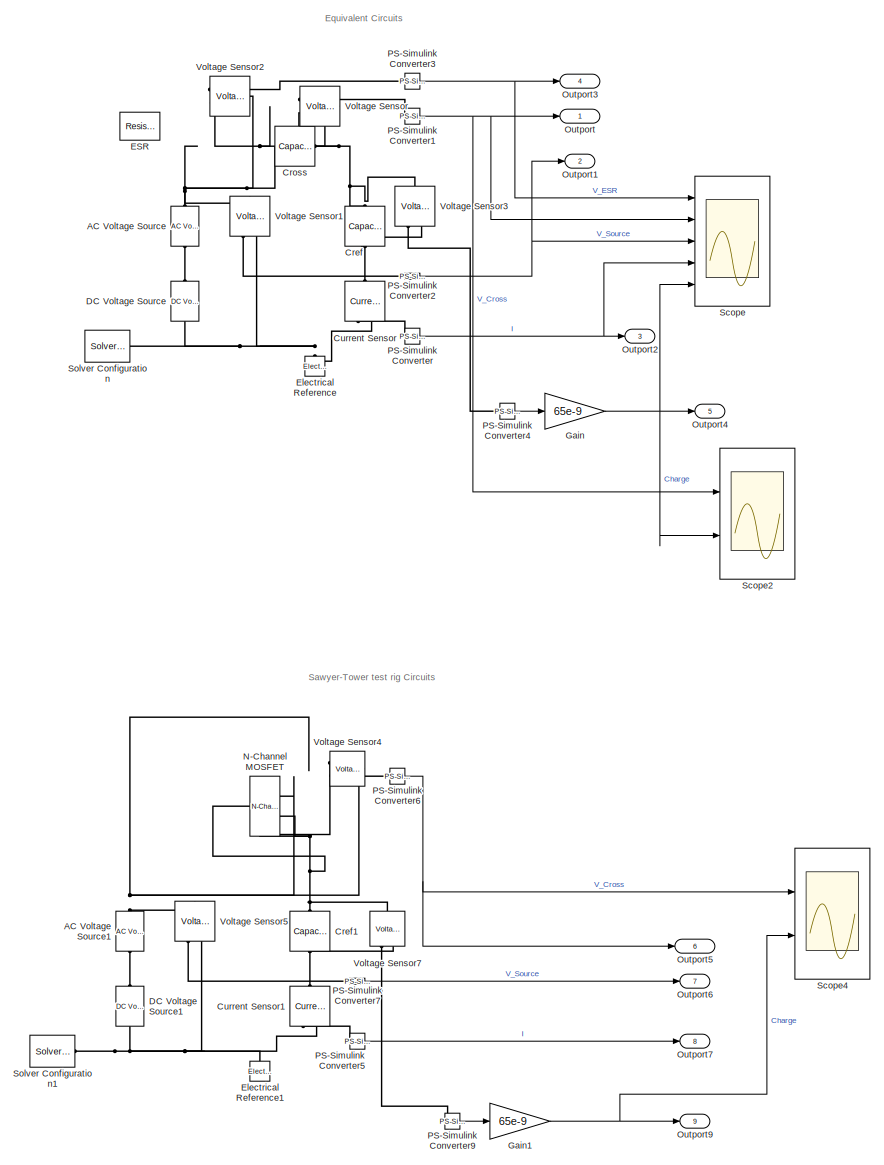
[diagram: root canvas - part 1/2, right side, full height]
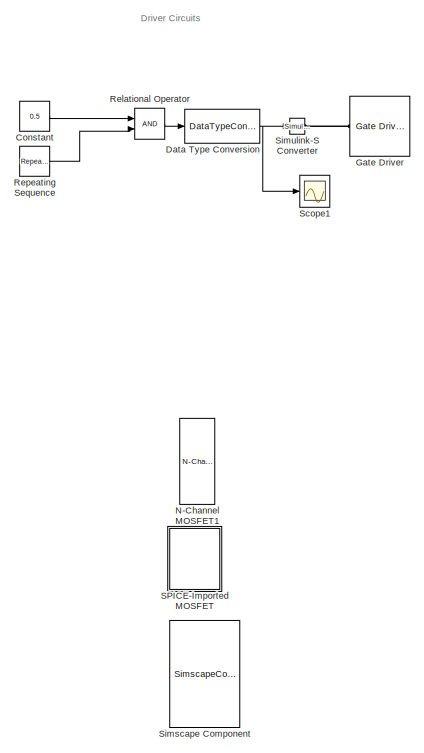
[diagram: root canvas - part 2/2, middle left region]
MODEL slx_3ec526a459f6
KIND model
CONFIG AbsTol = auto
CONFIG EnableMultiTasking = off
CONFIG FixedStep = auto
CONFIG MaxStep = auto
CONFIG MinStep = auto
CONFIG RelTol = 1e-3
CONFIG SampleTimeConstraint = Unconstrained
CONFIG SolverName = VariableStepAuto
CONFIG StartTime = 0.0
CONFIG StopTime = 0.1
BLOCK [Reference] AC Voltage Source  REF=fl_lib/Electrical/Electrical Sources/AC Voltage Source
  Commented = on
  NameLocation = right
  Ports = [0, 0, 0, 0, 0, 1, 1]
  SourceBlock = fl_lib/Electrical/Electrical Sources/AC Voltage Source
  SourceProductBaseCode = SS
  SourceType = AC Voltage Source
BLOCK [Reference] AC Voltage Source1  REF=fl_lib/Electrical/Electrical Sources/AC Voltage Source
  Commented = on
  NameLocation = right
  Ports = [0, 0, 0, 0, 0, 1, 1]
  SourceBlock = fl_lib/Electrical/Electrical Sources/AC Voltage Source
  SourceProductBaseCode = SS
  SourceType = AC Voltage Source
BLOCK [Constant] Constant
  Commented = on
  Value = 0.5
BLOCK [Reference] Cref  REF=fl_lib/Electrical/Electrical Elements/Capacitor
  Commented = on
  NameLocation = left
  Ports = [0, 0, 0, 0, 0, 1, 1]
  SourceBlock = fl_lib/Electrical/Electrical Elements/Capacitor
  SourceProductBaseCode = SS
  SourceType = Capacitor
BLOCK [Reference] Cref1  REF=fl_lib/Electrical/Electrical Elements/Capacitor
  Commented = on
  NameLocation = left
  Ports = [0, 0, 0, 0, 0, 1, 1]
  SourceBlock = fl_lib/Electrical/Electrical Elements/Capacitor
  SourceProductBaseCode = SS
  SourceType = Capacitor
BLOCK [Reference] Cross  REF=fl_lib/Electrical/Electrical Elements/Capacitor
  Commented = on
  Ports = [0, 0, 0, 0, 0, 1, 1]
  SourceBlock = fl_lib/Electrical/Electrical Elements/Capacitor
  SourceProductBaseCode = SS
  SourceType = Capacitor
BLOCK [Reference] Current Sensor  REF=fl_lib/Electrical/Electrical Sensors/Current Sensor
  Commented = on
  NameLocation = left
  Ports = [0, 0, 0, 0, 0, 1, 2]
  SourceBlock = fl_lib/Electrical/Electrical Sensors/Current Sensor
  SourceProductBaseCode = SS
  SourceType = Current Sensor
BLOCK [Reference] Current Sensor1  REF=fl_lib/Electrical/Electrical Sensors/Current Sensor
  Commented = on
  NameLocation = left
  Ports = [0, 0, 0, 0, 0, 1, 2]
  SourceBlock = fl_lib/Electrical/Electrical Sensors/Current Sensor
  SourceProductBaseCode = SS
  SourceType = Current Sensor
BLOCK [Reference] DC Voltage Source  REF=ee_lib/Additional
Components/SPICE Sources/DC Voltage Source
  Commented = on
  NameLocation = right
  Ports = [0, 0, 0, 0, 0, 1, 1]
  SourceBlock = ee_lib/Additional\nComponents/SPICE Sources/DC Voltage Source
  SourceProductBaseCode = PS
  SourceType = DC Voltage Source
BLOCK [Reference] DC Voltage Source1  REF=ee_lib/Additional
Components/SPICE Sources/DC Voltage Source
  Commented = on
  NameLocation = right
  Ports = [0, 0, 0, 0, 0, 1, 1]
  SourceBlock = ee_lib/Additional\nComponents/SPICE Sources/DC Voltage Source
  SourceProductBaseCode = PS
  SourceType = DC Voltage Source
BLOCK [DataTypeConversion] Data Type Conversion
  Commented = on
  OutDataTypeStr = double
  RndMeth = Floor
  SaturateOnIntegerOverflow = off
BLOCK [Reference] ESR  REF=fl_lib/Electrical/Electrical Elements/Resistor
  Commented = on
  Ports = [0, 0, 0, 0, 0, 1, 1]
  SourceBlock = fl_lib/Electrical/Electrical Elements/Resistor
  SourceProductBaseCode = SS
  SourceType = Resistor
BLOCK [Reference] Electrical Reference  REF=fl_lib/Electrical/Electrical Elements/Electrical Reference
  Commented = on
  NameLocation = right
  Ports = [0, 0, 0, 0, 0, 1]
  SourceBlock = fl_lib/Electrical/Electrical Elements/Electrical Reference
  SourceProductBaseCode = SS
  SourceType = Electrical Reference
BLOCK [Reference] Electrical Reference1  REF=fl_lib/Electrical/Electrical Elements/Electrical Reference
  Commented = on
  NameLocation = right
  Ports = [0, 0, 0, 0, 0, 1]
  SourceBlock = fl_lib/Electrical/Electrical Elements/Electrical Reference
  SourceProductBaseCode = SS
  SourceType = Electrical Reference
BLOCK [Gain] Gain
  Commented = on
  Gain = 65e-9
BLOCK [Gain] Gain1
  Commented = on
  Gain = 65e-9
BLOCK [Reference] Gate Driver  REF=ee_lib/Semiconductors &
Converters/Gate Driver
  Commented = on
  Ports = [0, 0, 0, 0, 0, 1, 2]
  SourceBlock = ee_lib/Semiconductors &\nConverters/Gate Driver
  SourceProductBaseCode = PS
  SourceType = Gate Driver
BLOCK [Reference] N-Channel MOSFET  REF=ee_lib/Semiconductors &
Converters/N-Channel MOSFET
  Commented = on
  Ports = [0, 0, 0, 0, 0, 1, 2]
  SourceBlock = ee_lib/Semiconductors &\nConverters/N-Channel MOSFET
  SourceProductBaseCode = PS
  SourceType = N-Channel MOSFET
BLOCK [Reference] N-Channel MOSFET1  REF=ee_lib/Semiconductors &
Converters/N-Channel MOSFET
  Ports = [0, 0, 0, 0, 0, 1, 2]
  SourceBlock = ee_lib/Semiconductors &\nConverters/N-Channel MOSFET
  SourceProductBaseCode = PS
  SourceType = N-Channel MOSFET
BLOCK [Outport] Outport
  SignalName = VCross
BLOCK [Outport] Outport1
  Port = 2
  SignalName = Vsource
BLOCK [Outport] Outport2
  Port = 3
  SignalName = I
BLOCK [Outport] Outport3
  Port = 4
  SignalName = VESR
BLOCK [Outport] Outport4
  Port = 5
  SignalName = Charge
BLOCK [Outport] Outport5
  Port = 6
  SignalName = VCross
BLOCK [Outport] Outport6
  Port = 7
  SignalName = Vsource
BLOCK [Outport] Outport7
  Port = 8
  SignalName = I
BLOCK [Outport] Outport9
  Port = 9
  SignalName = Charge
BLOCK [Reference] PS-Simulink Converter  REF=nesl_utility/PS-Simulink
Converter
  Commented = on
  Ports = [0, 1, 0, 0, 0, 1]
  SourceBlock = nesl_utility/PS-Simulink\nConverter
  SourceProductBaseCode = PW,SS
  SourceType = PS-Simulink\nConverter
BLOCK [Reference] PS-Simulink Converter1  REF=nesl_utility/PS-Simulink
Converter
  Commented = on
  Ports = [0, 1, 0, 0, 0, 1]
  SourceBlock = nesl_utility/PS-Simulink\nConverter
  SourceProductBaseCode = PW,SS
  SourceType = PS-Simulink\nConverter
BLOCK [Reference] PS-Simulink Converter2  REF=nesl_utility/PS-Simulink
Converter
  Commented = on
  Ports = [0, 1, 0, 0, 0, 1]
  SourceBlock = nesl_utility/PS-Simulink\nConverter
  SourceProductBaseCode = PW,SS
  SourceType = PS-Simulink\nConverter
BLOCK [Reference] PS-Simulink Converter3  REF=nesl_utility/PS-Simulink
Converter
  Commented = on
  Ports = [0, 1, 0, 0, 0, 1]
  SourceBlock = nesl_utility/PS-Simulink\nConverter
  SourceProductBaseCode = PW,SS
  SourceType = PS-Simulink\nConverter
BLOCK [Reference] PS-Simulink Converter4  REF=nesl_utility/PS-Simulink
Converter
  Commented = on
  Ports = [0, 1, 0, 0, 0, 1]
  SourceBlock = nesl_utility/PS-Simulink\nConverter
  SourceProductBaseCode = PW,SS
  SourceType = PS-Simulink\nConverter
BLOCK [Reference] PS-Simulink Converter5  REF=nesl_utility/PS-Simulink
Converter
  Commented = on
  Ports = [0, 1, 0, 0, 0, 1]
  SourceBlock = nesl_utility/PS-Simulink\nConverter
  SourceProductBaseCode = PW,SS
  SourceType = PS-Simulink\nConverter
BLOCK [Reference] PS-Simulink Converter6  REF=nesl_utility/PS-Simulink
Converter
  Commented = on
  Ports = [0, 1, 0, 0, 0, 1]
  SourceBlock = nesl_utility/PS-Simulink\nConverter
  SourceProductBaseCode = PW,SS
  SourceType = PS-Simulink\nConverter
BLOCK [Reference] PS-Simulink Converter7  REF=nesl_utility/PS-Simulink
Converter
  Commented = on
  Ports = [0, 1, 0, 0, 0, 1]
  SourceBlock = nesl_utility/PS-Simulink\nConverter
  SourceProductBaseCode = PW,SS
  SourceType = PS-Simulink\nConverter
BLOCK [Reference] PS-Simulink Converter9  REF=nesl_utility/PS-Simulink
Converter
  Commented = on
  Ports = [0, 1, 0, 0, 0, 1]
  SourceBlock = nesl_utility/PS-Simulink\nConverter
  SourceProductBaseCode = PW,SS
  SourceType = PS-Simulink\nConverter
BLOCK [RelationalOperator] Relational Operator
  Commented = on
  InputSameDT = off
  OutDataTypeStr = boolean
  Ports = [2, 1]
  RndMeth = Simplest
BLOCK [Reference] Repeating Sequence  REF=simulink/Sources/Repeating
Sequence
  Commented = on
  Ports = [0, 1]
  SourceBlock = simulink/Sources/Repeating\nSequence
  SourceProductBaseCode = SL
  SourceType = Repeating table
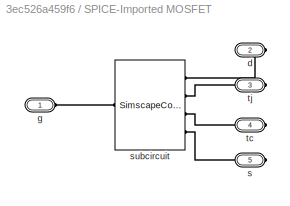
BLOCK [SubSystem] SPICE-Imported MOSFET
  CopyFcn = set_param(gcb,'LinkStatus','none');
  Ports = [0, 0, 0, 0, 0, 1, 4]
  RequestExecContextInheritance = off
BLOCK [PMIOPort] SPICE-Imported MOSFET/d
  Port = 2
  Side = Right
BLOCK [PMIOPort] SPICE-Imported MOSFET/g
  Side = Left
BLOCK [PMIOPort] SPICE-Imported MOSFET/s
  Port = 5
  Side = Right
BLOCK [SimscapeComponentBlock] SPICE-Imported MOSFET/subcircuit
  ClassName = IAUC120N04S6N009_wrapped
  ComponentPath = ee_spice_mosfets.spiceinfineon.spiceOptiMOS_6_40V.IAUC120N04S6N009_wrapped
  ComponentVariantNames = ["IAUC120N04S6N009_wrapped"]
  ComponentVariants = ["ee_spice_mosfets.spiceinfineon.spiceOptiMOS_6_40V.IAUC120N04S6N009_wrapped"]
  CopyFcn = simscape.engine.sli.internal.componentblockcallback(gcbh,'COPY')
  InternalSimscapePortConfiguration = {"Bottom":[],"Left":[{"id":"gate","label":"g","type":"foundation.electrical.electrical"}],"Right":[{"id":"drain","label":"d","type":"foundation.electrical.electrical"},{"id":"tj","label":"tj","type":"foundation.electrical.electrical"},{"id":"tcase","label":"tc","type":"foundation.electrical.electrical"},{"id":"source","label":"s","type":"foundation.electrical.electrical"}],"Top":[]}
  MaskType = Infineon IAUC120N04S6N009
  Ports = [0, 0, 0, 0, 0, 1, 4]
  PreCopyFcn = simscape.engine.sli.internal.componentblockcallback(gcbh,'PRECOPY')
  PreDeleteFcn = simscape.engine.sli.internal.componentblockcallback(gcbh,'PREDELETE')
  SchemaVersion = 1
  SourceFile = ee_spice_mosfets.spiceinfineon.spiceOptiMOS_6_40V.IAUC120N04S6N009_wrapped
BLOCK [PMIOPort] SPICE-Imported MOSFET/tc
  Port = 4
  Side = Right
BLOCK [PMIOPort] SPICE-Imported MOSFET/tj
  Port = 3
  Side = Right
BLOCK [Scope] Scope
  Commented = on
  Floating = off
  NumInputPorts = 5
  Ports = [5]
  ScopeSpecificationString = Simulink.scopes.TimeScopeBlockCfg('CurrentConfiguration', extmgr.ConfigurationSet(extmgr.Configuration('Core','General UI',true),extmgr.Configuration('Core','Source UI',true),extmgr.Configuration('Sources','WiredSimulink',true),extmgr.Configuration('Visuals','Time Domain',true,'SerializedDisplays',{struct('MinYLimReal','-1.00000','MaxYLimReal','1.00000','YLabelReal','','MinYLimMag','0.00000','MaxY...<+4891ch>
BLOCK [Scope] Scope1
  Commented = on
  Floating = off
  NumInputPorts = 1
  Ports = [1]
  ScopeSpecificationString = Simulink.scopes.TimeScopeBlockCfg('CurrentConfiguration', extmgr.ConfigurationSet(extmgr.Configuration('Core','General UI',true),extmgr.Configuration('Core','Source UI',true),extmgr.Configuration('Sources','WiredSimulink',true,'DataLoggingVariableName','ScopeData1'),extmgr.Configuration('Visuals','Time Domain',true,'SerializedDisplays',{struct('MinYLimReal','-0.06865','MaxYLimReal','1.08231','YLab...<+1427ch>
BLOCK [Scope] Scope2
  Commented = on
  Floating = off
  NumInputPorts = 2
  Ports = [2]
  ScopeSpecificationString = Simulink.scopes.TimeScopeBlockCfg('CurrentConfiguration', extmgr.ConfigurationSet(extmgr.Configuration('Core','General UI',true),extmgr.Configuration('Core','Source UI',true),extmgr.Configuration('Sources','WiredSimulink',true,'DataLoggingVariableName','ScopeData1'),extmgr.Configuration('Visuals','Time Domain',true,'SerializedDisplays',{struct('MinYLimReal','-7.91103','MaxYLimReal','71.1993','YLab...<+1499ch>
BLOCK [Scope] Scope4
  Commented = on
  Floating = off
  NumInputPorts = 2
  Ports = [2]
  ScopeSpecificationString = Simulink.scopes.TimeScopeBlockCfg('CurrentConfiguration', extmgr.ConfigurationSet(extmgr.Configuration('Core','General UI',true),extmgr.Configuration('Core','Source UI',true),extmgr.Configuration('Sources','WiredSimulink',true,'DataLoggingVariableName','ScopeData3'),extmgr.Configuration('Visuals','Time Domain',true,'SerializedDisplays',{struct('MinYLimReal','37.4494','MaxYLimReal','162.27693','YLa...<+2146ch>
BLOCK [SimscapeComponentBlock] Simscape Component
  ClassName = sct3030ar
  ComponentPath = myLIB.sct3030ar
  ComponentVariantNames = ["sct3030ar"]
  ComponentVariants = ["myLIB.sct3030ar"]
  CopyFcn = simscape.engine.sli.internal.componentblockcallback(gcbh,'COPY')
  E1 = 0
  E11 = 0
  E11_nominal_specify = off
  E11_nominal_unit = A
  E11_nominal_value = 1
  E11_priority = None
  E11_specify = off
  E11_unit = A
  E1_nominal_specify = off
  E1_nominal_unit = A
  E1_nominal_value = 1
  E1_priority = None
  E1_specify = off
  E1_unit = A
  E2 = 0
  E2_nominal_specify = off
  E2_nominal_unit = A
  E2_nominal_value = 1
  E2_priority = None
  E2_specify = off
  E2_unit = A
  E6 = 0
  E6_nominal_specify = off
  E6_nominal_unit = A
  E6_nominal_value = 1
  E6_priority = None
  E6_specify = off
  E6_unit = A
  E7 = 0
  E7_nominal_specify = off
  E7_nominal_unit = A
  E7_nominal_value = 1
  E7_priority = None
  E7_specify = off
  E7_unit = A
  G1 = 0
  G11 = 0
  G11_nominal_specify = off
  G11_nominal_unit = A
  G11_nominal_value = 1
  G11_priority = None
  G11_specify = off
  G11_unit = A
  G1_nominal_specify = off
  G1_nominal_unit = A
  G1_nominal_value = 1
  G1_priority = None
  G1_specify = off
  G1_unit = A
  G2 = 0
  G2_nominal_specify = off
  G2_nominal_unit = A
  G2_nominal_value = 1
  G2_priority = None
  G2_specify = off
  G2_unit = A
  G6 = 0
  G6_nominal_specify = off
  G6_nominal_unit = A
  G6_nominal_value = 1
  G6_priority = None
  G6_specify = off
  G6_unit = A
  InternalSimscapePortConfiguration = {"Bottom":[],"Left":[{"id":"node_1","label":"drain","type":"foundation.electrical.electrical"},{"id":"node_2","label":"node_2","type":"foundation.electrical.electrical"},{"id":"node_3","label":"node_3","type":"foundation.electrical.electrical"},{"id":"node_4","label":"node_4","type":"foundation.electrical.electrical"}],"Right":[],"Top":[]}
  MaskType = sct3030ar
  Ports = [0, 0, 0, 0, 0, 4]
  PreCopyFcn = simscape.engine.sli.internal.componentblockcallback(gcbh,'PRECOPY')
  PreDeleteFcn = simscape.engine.sli.internal.componentblockcallback(gcbh,'PREDELETE')
  SchemaVersion = 1
  SourceFile = myLIB.sct3030ar
  aWarning = ee.enum.include.no
  aWarning_conf = compiletime
  aWarning_unit = 1
  capacitorSeriesResistance = 0
  capacitorSeriesResistance_conf = compiletime
  capacitorSeriesResistance_unit = Ohm
  crossZero = ee.enum.include.no
  crossZero_conf = compiletime
  crossZero_unit = 1
  dropPowerFlag = ee.enum.function.powerFlag.hyp
  dropPowerFlag_conf = compiletime
  dropPowerFlag_unit = 1
  dropPowerHypEpsilon = 0
  dropPowerHypEpsilon_conf = compiletime
  dropPowerHypEpsilon_unit = 1
  expXh = Inf
  expXh_conf = compiletime
  expXh_unit = 1
  expXl = -Inf
  expXl_conf = compiletime
  expXl_unit = 1
  hyperbolicMaximumAbsolute = Inf
  hyperbolicMaximumAbsolute_conf = compiletime
  hyperbolicMaximumAbsolute_unit = 1
  inductorParallelConductance = 0
  inductorParallelConductance_conf = compiletime
  inductorParallelConductance_unit = 1/Ohm
  smoothEpsilon = 0
  smoothEpsilon_conf = compiletime
  smoothEpsilon_unit = 1
  smoothN = 1
  smoothN_conf = compiletime
  smoothN_unit = 1
  specifyParasiticValues = ee.enum.include.no
  specifyParasiticValues_conf = compiletime
  specifyParasiticValues_unit = 1
  specifySmoothValues = ee.enum.include.no
  specifySmoothValues_conf = compiletime
  specifySmoothValues_unit = 1
  temp = 27
  temp_conf = compiletime
  temp_unit = 1
BLOCK [Reference] Simulink-S Converter  REF=nesl_utility/Simulink-PS
Converter
  Commented = on
  Ports = [1, 0, 0, 0, 0, 0, 1]
  SourceBlock = nesl_utility/Simulink-PS\nConverter
  SourceProductBaseCode = PW,SS
  SourceType = Simulink-PS\nConverter
BLOCK [Reference] Solver Configuration  REF=nesl_utility/Solver
Configuration
  Commented = on
  Ports = [0, 0, 0, 0, 0, 0, 1]
  SourceBlock = nesl_utility/Solver\nConfiguration
  SourceProductBaseCode = PW,SS
  SourceType = Solver\nConfiguration
BLOCK [Reference] Solver Configuration1  REF=nesl_utility/Solver
Configuration
  Commented = on
  Ports = [0, 0, 0, 0, 0, 0, 1]
  SourceBlock = nesl_utility/Solver\nConfiguration
  SourceProductBaseCode = PW,SS
  SourceType = Solver\nConfiguration
BLOCK [Reference] Voltage Sensor  REF=fl_lib/Electrical/Electrical Sensors/Voltage Sensor
  Commented = on
  NameLocation = top
  Ports = [0, 0, 0, 0, 0, 1, 2]
  SourceBlock = fl_lib/Electrical/Electrical Sensors/Voltage Sensor
  SourceProductBaseCode = SS
  SourceType = Voltage Sensor
BLOCK [Reference] Voltage Sensor1  REF=fl_lib/Electrical/Electrical Sensors/Voltage Sensor
  Commented = on
  NameLocation = right
  Ports = [0, 0, 0, 0, 0, 1, 2]
  SourceBlock = fl_lib/Electrical/Electrical Sensors/Voltage Sensor
  SourceProductBaseCode = SS
  SourceType = Voltage Sensor
BLOCK [Reference] Voltage Sensor2  REF=fl_lib/Electrical/Electrical Sensors/Voltage Sensor
  Commented = on
  NameLocation = top
  Ports = [0, 0, 0, 0, 0, 1, 2]
  SourceBlock = fl_lib/Electrical/Electrical Sensors/Voltage Sensor
  SourceProductBaseCode = SS
  SourceType = Voltage Sensor
BLOCK [Reference] Voltage Sensor3  REF=fl_lib/Electrical/Electrical Sensors/Voltage Sensor
  Commented = on
  NameLocation = right
  Ports = [0, 0, 0, 0, 0, 1, 2]
  SourceBlock = fl_lib/Electrical/Electrical Sensors/Voltage Sensor
  SourceProductBaseCode = SS
  SourceType = Voltage Sensor
BLOCK [Reference] Voltage Sensor4  REF=fl_lib/Electrical/Electrical Sensors/Voltage Sensor
  Commented = on
  NameLocation = top
  Ports = [0, 0, 0, 0, 0, 1, 2]
  SourceBlock = fl_lib/Electrical/Electrical Sensors/Voltage Sensor
  SourceProductBaseCode = SS
  SourceType = Voltage Sensor
BLOCK [Reference] Voltage Sensor5  REF=fl_lib/Electrical/Electrical Sensors/Voltage Sensor
  Commented = on
  NameLocation = right
  Ports = [0, 0, 0, 0, 0, 1, 2]
  SourceBlock = fl_lib/Electrical/Electrical Sensors/Voltage Sensor
  SourceProductBaseCode = SS
  SourceType = Voltage Sensor
BLOCK [Reference] Voltage Sensor7  REF=fl_lib/Electrical/Electrical Sensors/Voltage Sensor
  Commented = on
  NameLocation = right
  Ports = [0, 0, 0, 0, 0, 1, 2]
  SourceBlock = fl_lib/Electrical/Electrical Sensors/Voltage Sensor
  SourceProductBaseCode = SS
  SourceType = Voltage Sensor
ANNOTATION (root): Driver Circuits
ANNOTATION (root): Equivalent Circuits
ANNOTATION (root): Sawyer-Tower test rig Circuits
LINE Constant:1 -> Relational Operator:1
NET Data Type Conversion:1 -> Scope1:1, Simulink-S Converter:1
NET Gain1:1 -> Outport9:1, Scope4:2
NET Gain:1 -> Outport4:1, Scope2:2, Scope:5
NET PS-Simulink Converter1:1 -> Outport:1, Scope2:1, Scope:2
NET PS-Simulink Converter2:1 -> Outport1:1, Scope:3
NET PS-Simulink Converter3:1 -> Outport3:1, Scope:1
LINE PS-Simulink Converter4:1 -> Gain:1
LINE PS-Simulink Converter5:1 -> Outport7:1
NET PS-Simulink Converter6:1 -> Outport5:1, Scope4:1
LINE PS-Simulink Converter7:1 -> Outport6:1
LINE PS-Simulink Converter9:1 -> Gain1:1
NET PS-Simulink Converter:1 -> Outport2:1, Scope:4
LINE Relational Operator:1 -> Data Type Conversion:1
LINE Repeating Sequence:1 -> Relational Operator:2
PNET net1: AC Voltage Source1:LConn1 -- N-Channel MOSFET:RConn1 -- Voltage Sensor4:LConn1 -- Voltage Sensor5:LConn1
PLINE AC Voltage Source1:RConn1 -- DC Voltage Source1:LConn1
PNET net2: AC Voltage Source:LConn1 -- Cross:LConn1 -- Voltage Sensor1:LConn1 -- Voltage Sensor2:LConn1 -- Voltage Sensor2:RConn2 -- Voltage Sensor:LConn1
PLINE AC Voltage Source:RConn1 -- DC Voltage Source:LConn1
PNET net3: Cref1:LConn1 -- N-Channel MOSFET:LConn1 -- N-Channel MOSFET:RConn2 -- Voltage Sensor4:RConn2 -- Voltage Sensor7:LConn1
PNET net4: Cref1:RConn1 -- Current Sensor1:LConn1 -- Voltage Sensor7:RConn2
PNET net5: Cref:LConn1 -- Cross:RConn1 -- Voltage Sensor3:LConn1 -- Voltage Sensor:RConn2
PNET net6: Cref:RConn1 -- Current Sensor:LConn1 -- Voltage Sensor3:RConn2
PLINE Current Sensor1:RConn1 -- PS-Simulink Converter5:LConn1
PNET net7: Current Sensor1:RConn2 -- DC Voltage Source1:RConn1 -- Electrical Reference1:LConn1 -- Solver Configuration1:RConn1 -- Voltage Sensor5:RConn2
PLINE Current Sensor:RConn1 -- PS-Simulink Converter:LConn1
PNET net8: Current Sensor:RConn2 -- DC Voltage Source:RConn1 -- Electrical Reference:LConn1 -- Solver Configuration:RConn1 -- Voltage Sensor1:RConn2
PLINE Gate Driver:LConn1 -- Simulink-S Converter:RConn1
PLINE PS-Simulink Converter1:LConn1 -- Voltage Sensor:RConn1
PLINE PS-Simulink Converter2:LConn1 -- Voltage Sensor1:RConn1
PLINE PS-Simulink Converter3:LConn1 -- Voltage Sensor2:RConn1
PLINE PS-Simulink Converter4:LConn1 -- Voltage Sensor3:RConn1
PLINE PS-Simulink Converter6:LConn1 -- Voltage Sensor4:RConn1
PLINE PS-Simulink Converter7:LConn1 -- Voltage Sensor5:RConn1
PLINE PS-Simulink Converter9:LConn1 -- Voltage Sensor7:RConn1
PLINE SPICE-Imported MOSFET/d:RConn1 -- SPICE-Imported MOSFET/subcircuit:RConn1
PLINE SPICE-Imported MOSFET/g:RConn1 -- SPICE-Imported MOSFET/subcircuit:LConn1
PLINE SPICE-Imported MOSFET/s:RConn1 -- SPICE-Imported MOSFET/subcircuit:RConn4
PLINE SPICE-Imported MOSFET/subcircuit:RConn2 -- SPICE-Imported MOSFET/tj:RConn1
PLINE SPICE-Imported MOSFET/subcircuit:RConn3 -- SPICE-Imported MOSFET/tc:RConn1
note: NET lines group one-source signal fan-out (src -> all destinations, sorted); 1:1 wires keep LINE; PNET lines group multi-terminal physical nets as a canonical sorted terminal list (undirected conserving connections); 2-terminal nets keep the pairwise PLINE form
